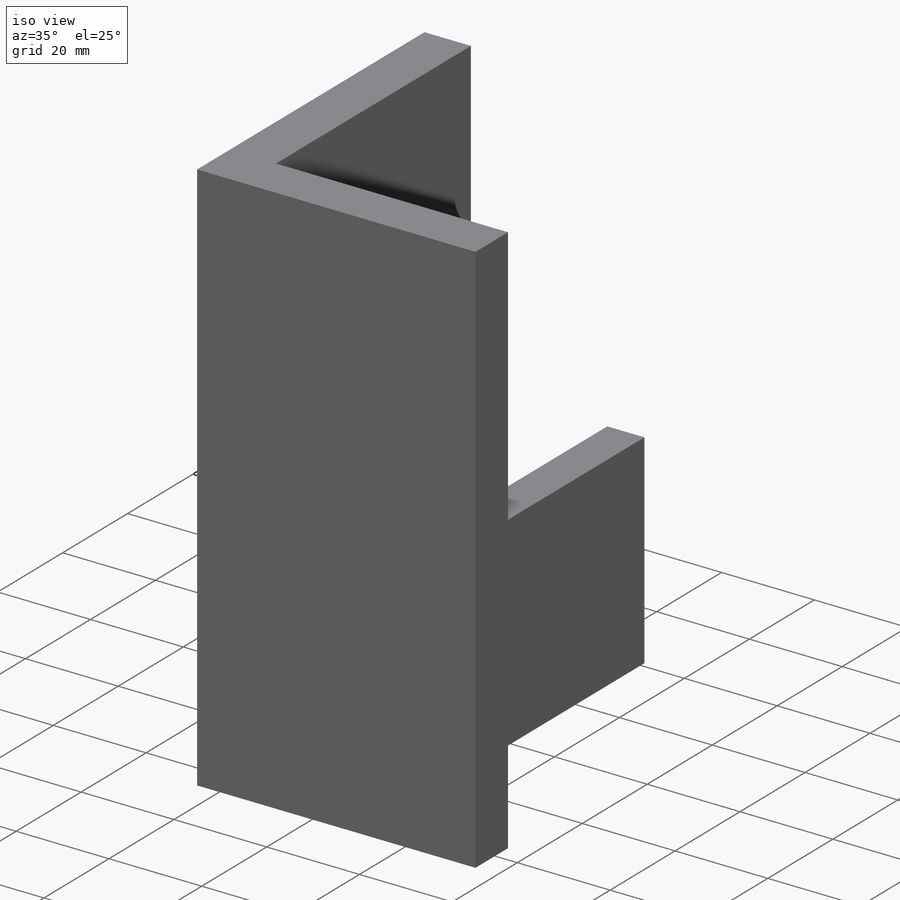
[diagram: iso view]
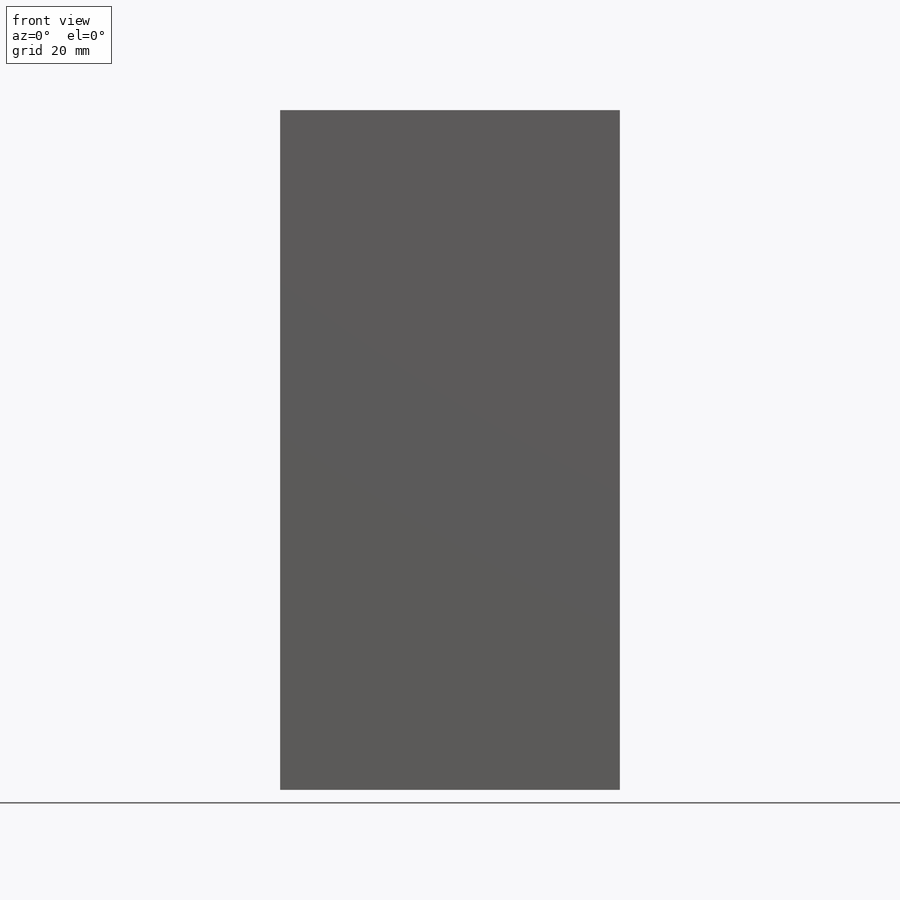
[diagram: front view]
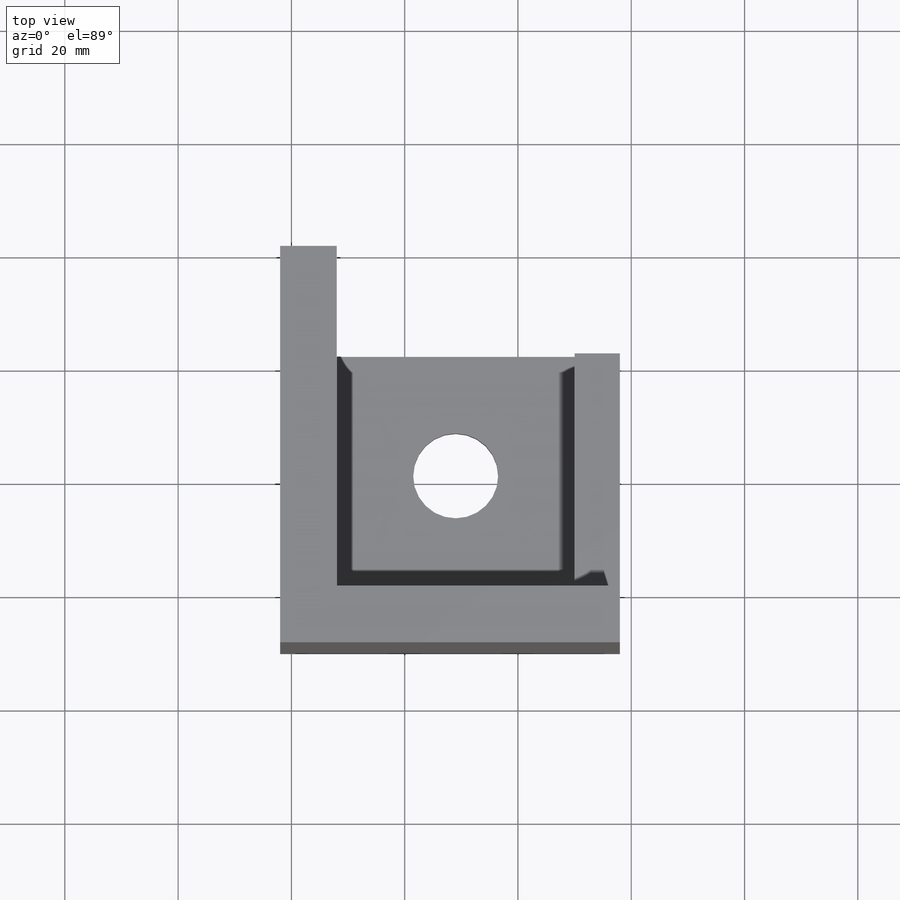
[diagram: top view]
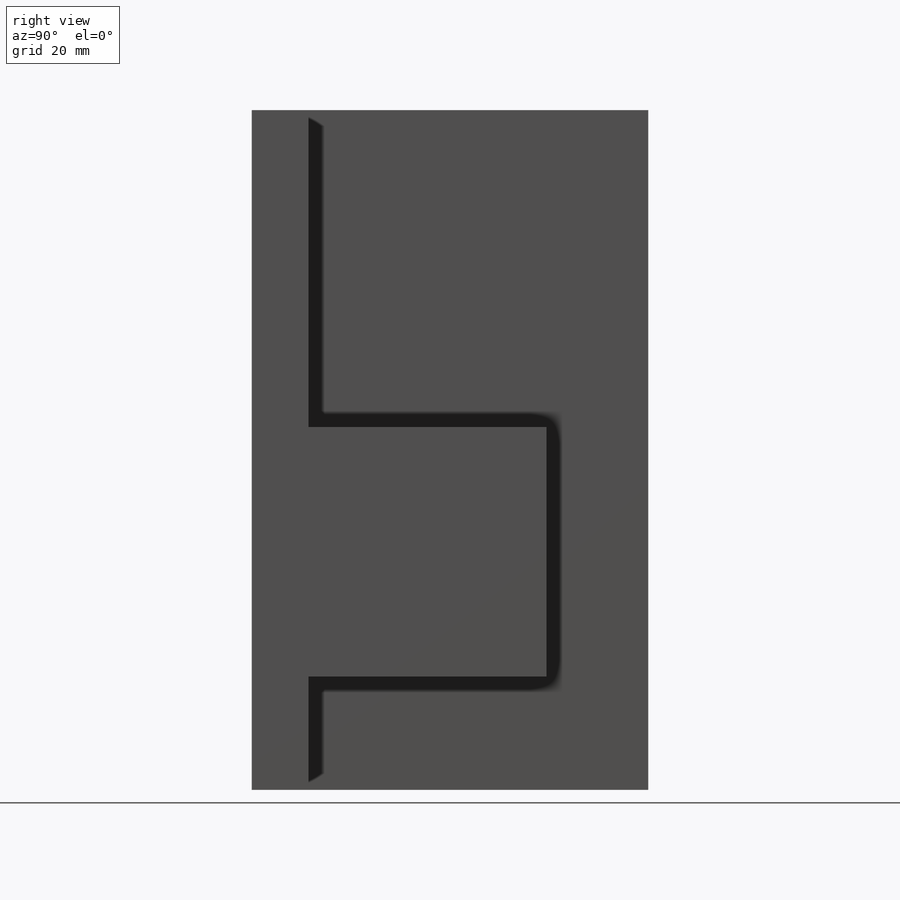
[diagram: right view]
SOLIDWORKS PART (.sldprt)
format: sldprt  version: not decoded by parser v0  size: 269,312 bytes
history: native  units: mm
features: sketch x7, extrude x4, plane x3, cut_extrude x3, material x1 (+9 scaffold rows collapsed)
feature tree (27):
  scaffold x9  (default folders/planes/origin — collapsed)
  material  "Material <not specified>"
  plane  "Plan de face"
  plane  "Plan de dessus"
  plane  "Plan de droite"
  sketch  "Sketch1"  dims[D1=10.0mm D2=120.0mm D3=10.0mm D4=8.0mm]
  extrude  "Boss-Extrude1"  Depth=55mm
  sketch  "Sketch2"  dims[D1=8.0mm D2=8.0mm D3=6.0mm D4=20.0mm D5=36.0mm D6=42.0mm D7=20.0mm]
  extrude  "Boss-Extrude2"  Depth=42mm
  sketch  "Sketch3"  dims[D1=15.0mm]
  cut_extrude  "Cut-Extrude1"  [1 undecoded]
  sketch  "Sketch4"  dims[D1=36.0mm D2=8.0mm]
  extrude  "Boss-Extrude3"  [1 undecoded]
  sketch  "Sketch5"  dims[D1=145.0mm D2=60.0mm]
  extrude  "Boss-Extrude4"  Depth=10mm
  sketch  "Sketch6"  dims[c1.D1=5.5mm c1.D2=5.5mm c1.D3=5.5mm c1.D4=5.5mm c1.D5=20.0mm c1.D6=32.0mm c1.D7=32.0mm c1.D8=20.0mm c1.D9=31.0mm c1.D10=~31.188124mm c2.D5=40.0mm c2.D8=20.5mm]
  cut_extrude  "Cut-Extrude2"  [1 undecoded]
  sketch  "Sketch7"  dims[D1=5.0mm D2=5.0mm D3=8.0mm D4=8.0mm D5=8.0mm]
  cut_extrude  "Cut-Extrude3"  Depth=10mm
decode coverage: 11 of 14 modeling features carry decoded parameters
note: ~ marks probable driven/reference dimensions
note: 3 parameter values undecoded
summary: no parameter record found for 3 features
note: suppression state not decoded; provenance and decode notes live in map.json
